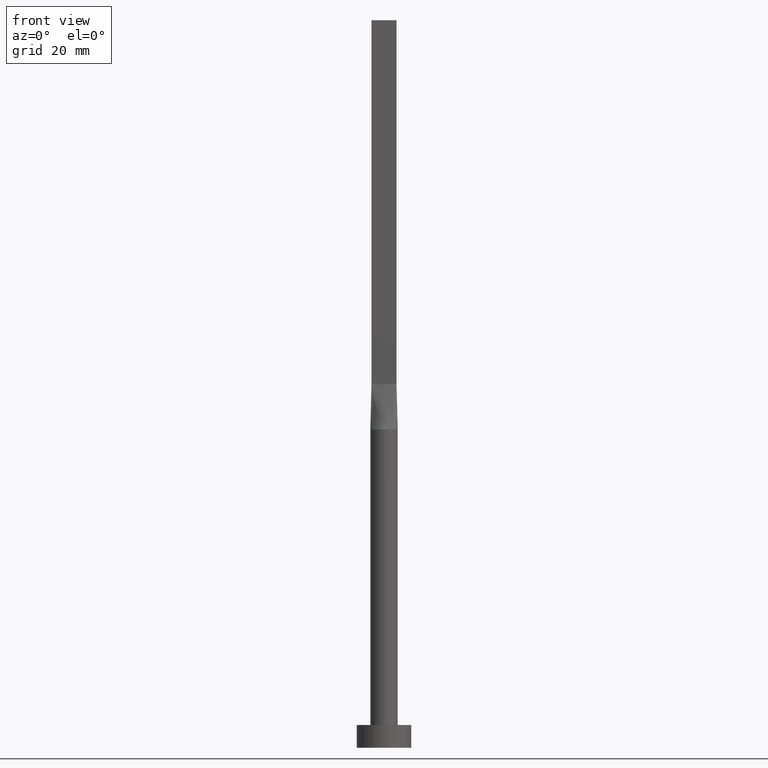
[diagram: clean part render]
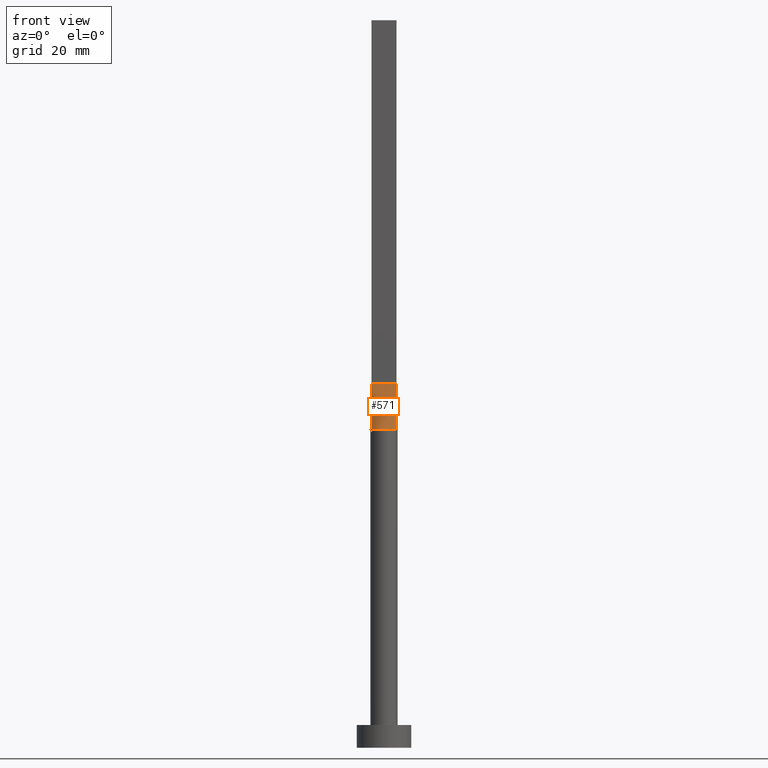
[diagram: same view with one face highlighted and labeled with its STEP entity id]
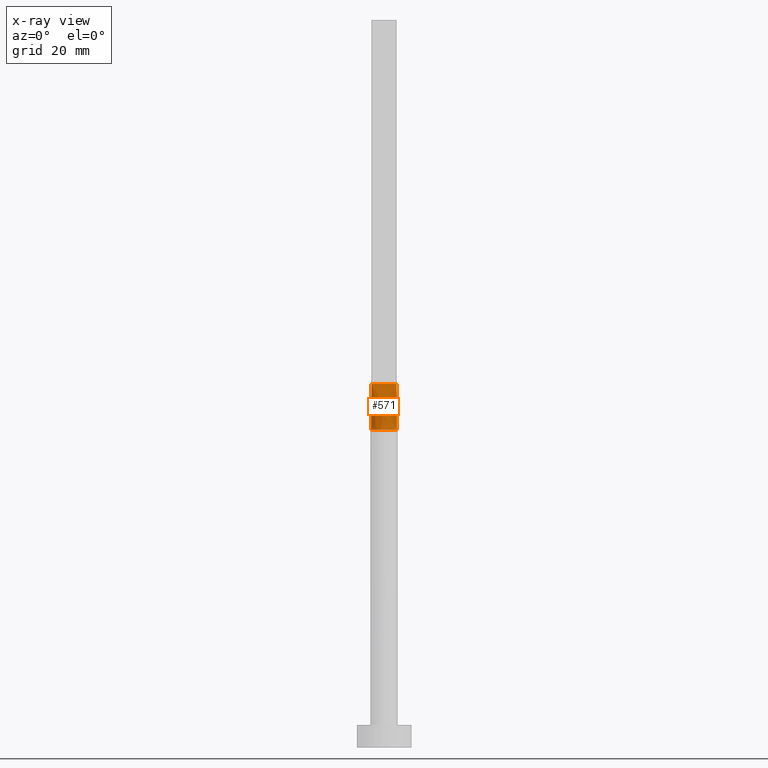
[diagram: x-ray of the same camera — body ghosted, the highlighted face saturated]
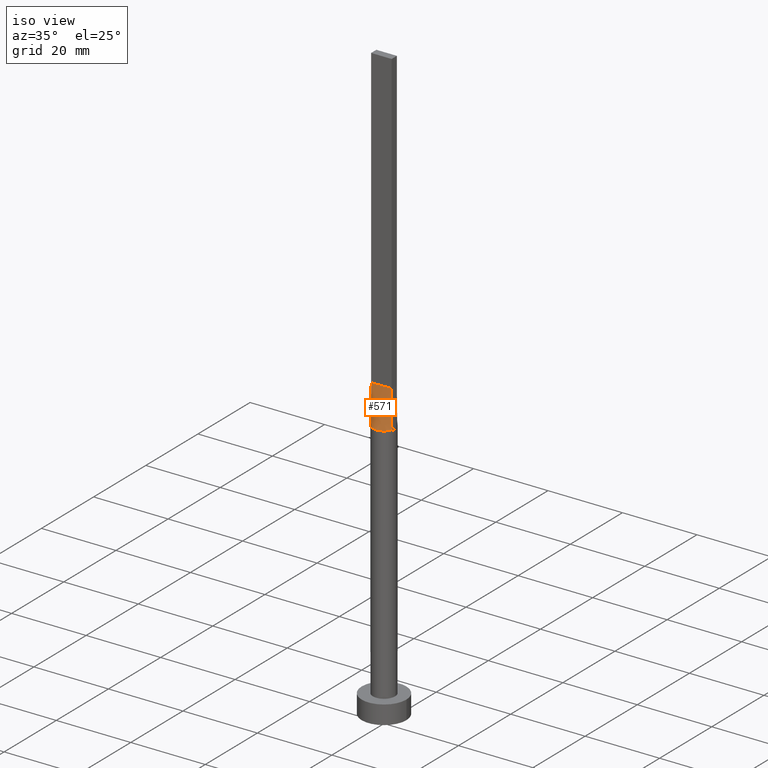
[diagram: same view with one face highlighted and labeled with its STEP entity id]
A machine part, front view. The second image highlights one B-rep face of the part: STEP entity #571.
The next image is the same camera in x-ray: the body ghosted, the highlighted face saturated — about 0% of this face is hidden behind the body in this view.
A second angle (iso view) of the same face is appended — the face is thin or edge-on in the first view.
In plain terms, the highlighted face is a freeform B-spline surface patch.
Its self-contained STEP definition (entity closure, byte-faithful):
#19 = LINE ( 'NONE', #184, #312 ) ;
#30 = CARTESIAN_POINT ( 'NONE',  ( -1.604166666666666963, -0.9999999999999993339, 79.99999999999998579 ) ) ;
#35 = CARTESIAN_POINT ( 'NONE',  ( -2.625980160873452540, -1.476334031700885507, 70.00000000000000000 ) ) ;
#40 = CARTESIAN_POINT ( 'NONE',  ( 2.625980160873452984, -1.476334031700886618, 70.00000000000001421 ) ) ;
#51 = AXIS2_PLACEMENT_3D ( 'NONE', #450, #220, #83 ) ;
#65 = CARTESIAN_POINT ( 'NONE',  ( -0.6998073349918614294, -2.936959335800558346, 70.00000000000001421 ) ) ;
#71 = CARTESIAN_POINT ( 'NONE',  ( -2.819413526938078007, -1.025241406939941369, 70.00000000000000000 ) ) ;
#83 = DIRECTION ( 'NONE',  ( 1.000000000000000000, 0.000000000000000000, 0.000000000000000000 ) ) ;
#87 = LINE ( 'NONE', #257, #116 ) ;
#116 = VECTOR ( 'NONE', #217, 1000.000000000000000 ) ;
#120 = CARTESIAN_POINT ( 'NONE',  ( -0.2291666666666671015, -0.9999999999999993339, 80.00000000000000000 ) ) ;
#121 = CARTESIAN_POINT ( 'NONE',  ( 2.819430526142641558, -1.025247683279450817, 70.00000000000000000 ) ) ;
#133 = CARTESIAN_POINT ( 'NONE',  ( 1.833333333333333037, -0.9999999999999995559, 79.99999999999998579 ) ) ;
#136 = CARTESIAN_POINT ( 'NONE',  ( 2.750000000000000000, -0.9999999999999997780, 80.00000000000000000 ) ) ;
#138 = VERTEX_POINT ( 'NONE', #71 ) ;
#157 = CARTESIAN_POINT ( 'NONE',  ( -2.750000000000000000, -0.9999999999999993339, 80.00000000000000000 ) ) ;
#160 = CARTESIAN_POINT ( 'NONE',  ( 0.3502136323054372835, -3.000000000000000444, 70.00000000000001421 ) ) ;
#167 = CARTESIAN_POINT ( 'NONE',  ( -2.739088299662391979, -1.246032108968140983, 70.00000000000001421 ) ) ;
#172 = CARTESIAN_POINT ( 'NONE',  ( 2.520833333333333037, -0.9999999999999995559, 79.99999999999998579 ) ) ;
#174 = CARTESIAN_POINT ( 'NONE',  ( 2.750000000000000000, -0.9999999999999997780, 80.00000000000000000 ) ) ;
#183 = EDGE_LOOP ( 'NONE', ( #480, #519, #304, #500 ) ) ;
#184 = CARTESIAN_POINT ( 'NONE',  ( 2.784690135232656072, -1.012614594630056208, 75.00000000000001421 ) ) ;
#197 = CARTESIAN_POINT ( 'NONE',  ( -1.833333333333333481, -0.9999999999999993339, 79.99999999999998579 ) ) ;
#202 = CARTESIAN_POINT ( 'NONE',  ( -2.115507543051069472, -2.149870311632975373, 70.00000000000000000 ) ) ;
#203 = B_SPLINE_SURFACE_WITH_KNOTS ( 'NONE', 3, 1, ( 
 ( #242, #157 ),
 ( #167, #467 ),
 ( #35, #464 ),
 ( #476, #197 ),
 ( #202, #30 ),
 ( #387, #336 ),
 ( #380, #564 ),
 ( #65, #207 ),
 ( #575, #120 ),
 ( #160, #340 ),
 ( #479, #328 ),
 ( #520, #246 ),
 ( #356, #348 ),
 ( #353, #258 ),
 ( #491, #133 ),
 ( #40, #539 ),
 ( #494, #172 ),
 ( #497, #136 ) ),
 .UNSPECIFIED., .F., .F., .F.,
 ( 4, 2, 2, 2, 2, 2, 2, 2, 4 ),
 ( 2, 2 ),
 ( 0.000000000000000000, 0.1250000000000000000, 0.2500000000000000000, 0.3750000000000000000, 0.5000000000000000000, 0.6250000000000000000, 0.7500000000000000000, 0.8750000000000000000, 1.000000000000000000 ),
 ( 0.000000000000000000, 1.000000000000000000 ),
 .UNSPECIFIED. ) ;
#207 = CARTESIAN_POINT ( 'NONE',  ( -0.4583333333333337589, -0.9999999999999993339, 79.99999999999998579 ) ) ;
#210 = LINE ( 'NONE', #573, #277 ) ;
#216 = EDGE_CURVE ( 'NONE', #138, #359, #486, .T. ) ;
#217 = DIRECTION ( 'NONE',  ( 1.000000000000000000, -7.885106708985487801E-17, 0.000000000000000000 ) ) ;
#220 = DIRECTION ( 'NONE',  ( 0.000000000000000000, 0.000000000000000000, 1.000000000000000000 ) ) ;
#223 = CARTESIAN_POINT ( 'NONE',  ( -2.750000000000000000, -0.9999999999999993339, 80.00000000000000000 ) ) ;
#226 = EDGE_CURVE ( 'NONE', #507, #462, #87, .T. ) ;
#242 = CARTESIAN_POINT ( 'NONE',  ( -2.819380270465311700, -1.025229189260111973, 70.00000000000000000 ) ) ;
#246 = CARTESIAN_POINT ( 'NONE',  ( 0.9166666666666661856, -0.9999999999999995559, 79.99999999999998579 ) ) ;
#257 = CARTESIAN_POINT ( 'NONE',  ( -2.750000000000000000, -0.9999999999999993339, 80.00000000000000000 ) ) ;
#258 = CARTESIAN_POINT ( 'NONE',  ( 1.604166666666666297, -0.9999999999999995559, 79.99999999999998579 ) ) ;
#277 = VECTOR ( 'NONE', #531, 1000.000000000000114 ) ;
#304 = ORIENTED_EDGE ( 'NONE', *, *, #226, .F. ) ;
#312 = VECTOR ( 'NONE', #368, 1000.000000000000114 ) ;
#323 = EDGE_CURVE ( 'NONE', #359, #462, #19, .T. ) ;
#328 = CARTESIAN_POINT ( 'NONE',  ( 0.4583333333333329263, -0.9999999999999995559, 79.99999999999998579 ) ) ;
#336 = CARTESIAN_POINT ( 'NONE',  ( -1.145833333333333703, -0.9999999999999993339, 79.99999999999998579 ) ) ;
#340 = CARTESIAN_POINT ( 'NONE',  ( 0.2291666666666662688, -0.9999999999999995559, 79.99999999999998579 ) ) ;
#348 = CARTESIAN_POINT ( 'NONE',  ( 1.145833333333332815, -0.9999999999999995559, 79.99999999999998579 ) ) ;
#353 = CARTESIAN_POINT ( 'NONE',  ( 2.115507543051068140, -2.149870311632976705, 69.99999999999998579 ) ) ;
#356 = CARTESIAN_POINT ( 'NONE',  ( 1.627925520694712080, -2.539128397820341831, 70.00000000000001421 ) ) ;
#359 = VERTEX_POINT ( 'NONE', #121 ) ;
#364 = EDGE_CURVE ( 'NONE', #507, #138, #210, .T. ) ;
#368 = DIRECTION ( 'NONE',  ( -0.006937837988376369981, 0.002522850177591328454, 0.9999727504442450510 ) ) ;
#380 = CARTESIAN_POINT ( 'NONE',  ( -1.338960936578150518, -2.706038443291638007, 70.00000000000000000 ) ) ;
#387 = CARTESIAN_POINT ( 'NONE',  ( -1.627925520694712525, -2.539128397820340055, 69.99999999999998579 ) ) ;
#450 = CARTESIAN_POINT ( 'NONE',  ( 0.000000000000000000, 0.000000000000000000, 70.00000000000000000 ) ) ;
#462 = VERTEX_POINT ( 'NONE', #174 ) ;
#464 = CARTESIAN_POINT ( 'NONE',  ( -2.291666666666666519, -0.9999999999999993339, 79.99999999999998579 ) ) ;
#467 = CARTESIAN_POINT ( 'NONE',  ( -2.520833333333333037, -0.9999999999999993339, 79.99999999999998579 ) ) ;
#470 = FACE_OUTER_BOUND ( 'NONE', #183, .T. ) ;
#476 = CARTESIAN_POINT ( 'NONE',  ( -2.314486317179578645, -1.928337902455806496, 70.00000000000000000 ) ) ;
#479 = CARTESIAN_POINT ( 'NONE',  ( 0.6998073349918603192, -2.936959335800557902, 70.00000000000001421 ) ) ;
#480 = ORIENTED_EDGE ( 'NONE', *, *, #216, .T. ) ;
#486 = CIRCLE ( 'NONE', #51, 3.000000000000000444 ) ;
#491 = CARTESIAN_POINT ( 'NONE',  ( 2.314486317179579533, -1.928337902455807606, 70.00000000000001421 ) ) ;
#494 = CARTESIAN_POINT ( 'NONE',  ( 2.739088299662391979, -1.246032108968142982, 70.00000000000001421 ) ) ;
#497 = CARTESIAN_POINT ( 'NONE',  ( 2.819380270465311700, -1.025229189260112417, 70.00000000000000000 ) ) ;
#500 = ORIENTED_EDGE ( 'NONE', *, *, #364, .T. ) ;
#507 = VERTEX_POINT ( 'NONE', #223 ) ;
#519 = ORIENTED_EDGE ( 'NONE', *, *, #323, .T. ) ;
#520 = CARTESIAN_POINT ( 'NONE',  ( 1.338960936578149630, -2.706038443291638007, 69.99999999999998579 ) ) ;
#531 = DIRECTION ( 'NONE',  ( -0.006937837988376369981, -0.002522850177591328454, -0.9999727504442450510 ) ) ;
#539 = CARTESIAN_POINT ( 'NONE',  ( 2.291666666666666519, -0.9999999999999995559, 79.99999999999998579 ) ) ;
#564 = CARTESIAN_POINT ( 'NONE',  ( -0.9166666666666670737, -0.9999999999999993339, 79.99999999999998579 ) ) ;
#571 = ADVANCED_FACE ( 'NONE', ( #470 ), #203, .T. ) ;
#573 = CARTESIAN_POINT ( 'NONE',  ( -2.784690135232656072, -1.012614594630055764, 75.00000000000001421 ) ) ;
#575 = CARTESIAN_POINT ( 'NONE',  ( -0.3502136323054380052, -3.000000000000000888, 70.00000000000000000 ) ) ;